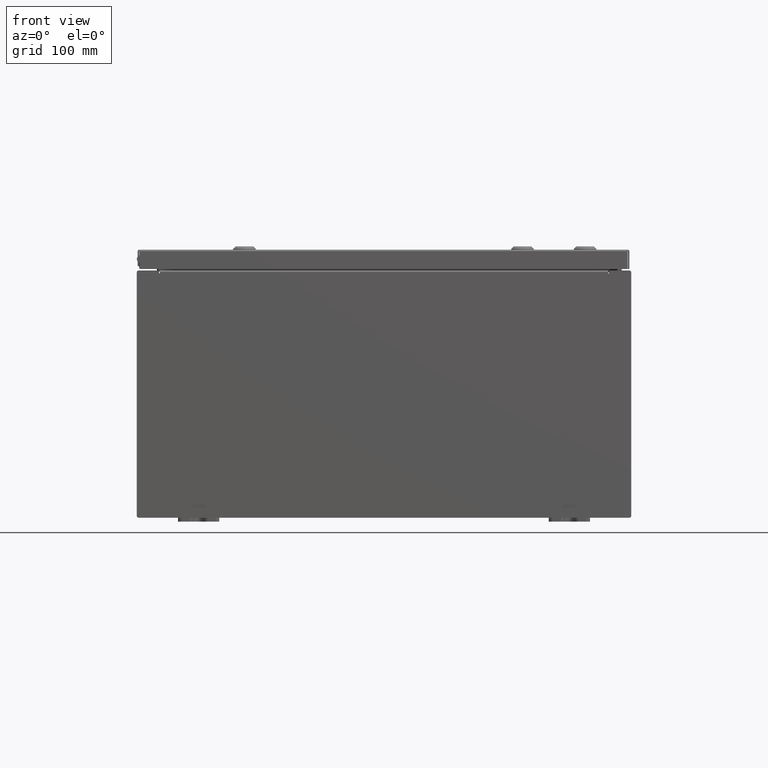
[diagram: clean part render]
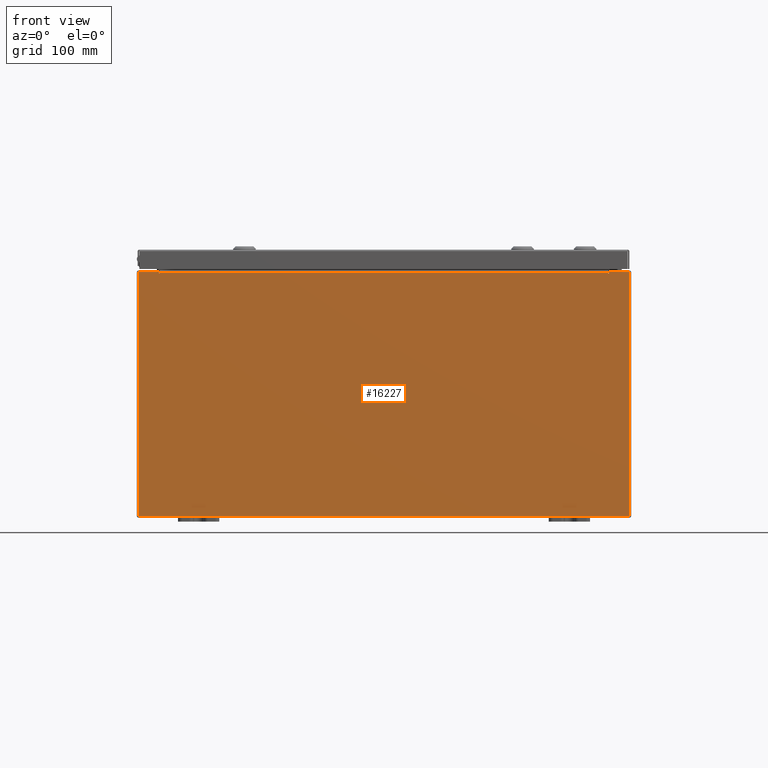
[diagram: same view with one face highlighted and labeled with its STEP entity id]
A machine part, front view. The second image highlights one B-rep face of the part: STEP entity #16227.
In plain terms, the highlighted planar face has unit normal (-0, 1, -0).
Its self-contained STEP definition (entity closure, byte-faithful):
#368 = ORIENTED_EDGE ( 'NONE', *, *, #1077, .T. ) ;
#1077 = EDGE_CURVE ( 'NONE', #51883, #45047, #43403, .T. ) ;
#2748 = VERTEX_POINT ( 'NONE', #34332 ) ;
#4678 = CIRCLE ( 'NONE', #19954, 0.01867499999999949400 ) ;
#4879 = DIRECTION ( 'NONE',  ( 0.0000000000000000000, 0.0000000000000000000, -1.000000000000000000 ) ) ;
#6088 = CARTESIAN_POINT ( 'NONE',  ( 10.92455000000000000, 0.0000000000000000000, 0.0000000000000000000 ) ) ;
#7534 = CARTESIAN_POINT ( 'NONE',  ( -11.92530000000000000, 0.0000000000000000000, 5.925300000000000000 ) ) ;
#7578 = CARTESIAN_POINT ( 'NONE',  ( -11.92530000000000000, 0.0000000000000000000, 5.925300000000000000 ) ) ;
#8031 = EDGE_CURVE ( 'NONE', #45047, #44910, #38470, .T. ) ;
#9326 = EDGE_CURVE ( 'NONE', #11562, #13471, #4678, .T. ) ;
#9350 = FACE_OUTER_BOUND ( 'NONE', #17246, .T. ) ;
#9672 = EDGE_CURVE ( 'NONE', #2748, #29135, #62175, .T. ) ;
#10993 = DIRECTION ( 'NONE',  ( 0.0000000000000000000, 0.0000000000000000000, -1.000000000000000000 ) ) ;
#11240 = DIRECTION ( 'NONE',  ( 1.000000000000000000, 0.0000000000000000000, 4.581600452255731000E-017 ) ) ;
#11562 = VERTEX_POINT ( 'NONE', #17351 ) ;
#12150 = DIRECTION ( 'NONE',  ( -0.0000000000000000000, 1.000000000000000000, -0.0000000000000000000 ) ) ;
#13124 = ORIENTED_EDGE ( 'NONE', *, *, #32636, .T. ) ;
#13471 = VERTEX_POINT ( 'NONE', #60496 ) ;
#13791 = DIRECTION ( 'NONE',  ( 0.0000000000000000000, 0.0000000000000000000, 1.000000000000000000 ) ) ;
#14008 = CARTESIAN_POINT ( 'NONE',  ( 10.92455000000000000, 0.0000000000000000000, 5.925300000000001800 ) ) ;
#14505 = CARTESIAN_POINT ( 'NONE',  ( -11.92530000000000000, 0.0000000000000000000, -5.925299999999999100 ) ) ;
#16227 = ADVANCED_FACE ( 'NONE', ( #9350 ), #55082, .F. ) ;
#17246 = EDGE_LOOP ( 'NONE', ( #52446, #63145, #41441, #13124, #52461, #54699, #20098, #26224, #57097, #46623, #368, #59735 ) ) ;
#17351 = CARTESIAN_POINT ( 'NONE',  ( -10.88720000000000000, -0.0000000000000000000, 5.874950000000001000 ) ) ;
#18836 = CARTESIAN_POINT ( 'NONE',  ( -10.88720000000000200, -1.707404996040164500E-016, 5.912300000000001000 ) ) ;
#19494 = EDGE_CURVE ( 'NONE', #29135, #24388, #35966, .T. ) ;
#19532 = CARTESIAN_POINT ( 'NONE',  ( 10.88720000000000200, 0.0000000000000000000, 5.874950000000001000 ) ) ;
#19954 = AXIS2_PLACEMENT_3D ( 'NONE', #41539, #12150, #46480 ) ;
#20098 = ORIENTED_EDGE ( 'NONE', *, *, #60185, .F. ) ;
#20327 = VECTOR ( 'NONE', #53533, 39.37007874015748100 ) ;
#20772 = CARTESIAN_POINT ( 'NONE',  ( 0.0000000000000000000, 0.0000000000000000000, 0.0000000000000000000 ) ) ;
#23440 = CARTESIAN_POINT ( 'NONE',  ( 10.88720000000000200, 0.0000000000000000000, 0.0000000000000000000 ) ) ;
#23774 = DIRECTION ( 'NONE',  ( 1.000000000000000000, 0.0000000000000000000, 0.0000000000000000000 ) ) ;
#24008 = EDGE_CURVE ( 'NONE', #54412, #51883, #46454, .T. ) ;
#24388 = VERTEX_POINT ( 'NONE', #41080 ) ;
#24462 = VECTOR ( 'NONE', #13791, 39.37007874015748100 ) ;
#24480 = VECTOR ( 'NONE', #31939, 39.37007874015748100 ) ;
#25178 = CARTESIAN_POINT ( 'NONE',  ( 10.90587500000000200, 0.0000000000000000000, 5.874950000000001000 ) ) ;
#25371 = CARTESIAN_POINT ( 'NONE',  ( -11.92530000000000000, 0.0000000000000000000, 5.925300000000000000 ) ) ;
#25569 = CARTESIAN_POINT ( 'NONE',  ( 11.92530000000000000, 0.0000000000000000000, 5.925300000000001800 ) ) ;
#25721 = EDGE_CURVE ( 'NONE', #13471, #44910, #35141, .T. ) ;
#26224 = ORIENTED_EDGE ( 'NONE', *, *, #38797, .T. ) ;
#26739 = DIRECTION ( 'NONE',  ( 0.0000000000000000000, 0.0000000000000000000, 1.000000000000000000 ) ) ;
#27105 = AXIS2_PLACEMENT_3D ( 'NONE', #20772, #60036, #30661 ) ;
#27283 = DIRECTION ( 'NONE',  ( -0.0000000000000000000, -0.0000000000000000000, 1.000000000000000000 ) ) ;
#29135 = VERTEX_POINT ( 'NONE', #19532 ) ;
#30122 = DIRECTION ( 'NONE',  ( 0.0000000000000000000, 0.0000000000000000000, -1.000000000000000000 ) ) ;
#30661 = DIRECTION ( 'NONE',  ( 0.0000000000000000000, -0.0000000000000000000, -1.000000000000000000 ) ) ;
#31631 = DIRECTION ( 'NONE',  ( 0.0000000000000000000, 0.0000000000000000000, -1.000000000000000000 ) ) ;
#31939 = DIRECTION ( 'NONE',  ( 1.000000000000000000, 0.0000000000000000000, 4.581600452255731000E-017 ) ) ;
#32636 = EDGE_CURVE ( 'NONE', #35146, #24388, #37123, .T. ) ;
#34332 = CARTESIAN_POINT ( 'NONE',  ( 10.92455000000000000, 0.0000000000000000000, 5.874950000000001000 ) ) ;
#34963 = VECTOR ( 'NONE', #31631, 39.37007874015748100 ) ;
#35141 = LINE ( 'NONE', #56089, #61268 ) ;
#35146 = VERTEX_POINT ( 'NONE', #60548 ) ;
#35695 = CARTESIAN_POINT ( 'NONE',  ( -11.92530000000000000, 0.0000000000000000000, 5.925300000000000000 ) ) ;
#35952 = AXIS2_PLACEMENT_3D ( 'NONE', #25178, #59499, #30122 ) ;
#35966 = LINE ( 'NONE', #23440, #24462 ) ;
#36925 = VECTOR ( 'NONE', #11240, 39.37007874015748100 ) ;
#37123 = LINE ( 'NONE', #18836, #61708 ) ;
#37144 = EDGE_CURVE ( 'NONE', #44902, #54412, #60679, .T. ) ;
#37242 = LINE ( 'NONE', #6088, #51859 ) ;
#38470 = LINE ( 'NONE', #35695, #36925 ) ;
#38797 = EDGE_CURVE ( 'NONE', #52666, #44902, #43087, .T. ) ;
#41080 = CARTESIAN_POINT ( 'NONE',  ( 10.88720000000000200, 0.0000000000000000000, 5.912300000000001000 ) ) ;
#41441 = ORIENTED_EDGE ( 'NONE', *, *, #59833, .F. ) ;
#41539 = CARTESIAN_POINT ( 'NONE',  ( -10.90587500000000000, 0.0000000000000000000, 5.874950000000001000 ) ) ;
#43087 = LINE ( 'NONE', #7534, #24480 ) ;
#43403 = LINE ( 'NONE', #25371, #56397 ) ;
#44902 = VERTEX_POINT ( 'NONE', #25569 ) ;
#44910 = VERTEX_POINT ( 'NONE', #55154 ) ;
#45047 = VERTEX_POINT ( 'NONE', #7578 ) ;
#46454 = LINE ( 'NONE', #14505, #20327 ) ;
#46480 = DIRECTION ( 'NONE',  ( 0.0000000000000000000, 0.0000000000000000000, -1.000000000000000000 ) ) ;
#46623 = ORIENTED_EDGE ( 'NONE', *, *, #24008, .T. ) ;
#51859 = VECTOR ( 'NONE', #10993, 39.37007874015748100 ) ;
#51883 = VERTEX_POINT ( 'NONE', #60744 ) ;
#52446 = ORIENTED_EDGE ( 'NONE', *, *, #25721, .F. ) ;
#52461 = ORIENTED_EDGE ( 'NONE', *, *, #19494, .F. ) ;
#52666 = VERTEX_POINT ( 'NONE', #14008 ) ;
#53533 = DIRECTION ( 'NONE',  ( -1.000000000000000000, -0.0000000000000000000, -0.0000000000000000000 ) ) ;
#54412 = VERTEX_POINT ( 'NONE', #59886 ) ;
#54699 = ORIENTED_EDGE ( 'NONE', *, *, #9672, .F. ) ;
#55082 = PLANE ( 'NONE',  #27105 ) ;
#55154 = CARTESIAN_POINT ( 'NONE',  ( -10.92454999999999800, 0.0000000000000000000, 5.925300000000000000 ) ) ;
#56089 = CARTESIAN_POINT ( 'NONE',  ( -10.92454999999999800, -0.0000000000000000000, 0.0000000000000000000 ) ) ;
#56397 = VECTOR ( 'NONE', #27283, 39.37007874015748100 ) ;
#57097 = ORIENTED_EDGE ( 'NONE', *, *, #37144, .T. ) ;
#59107 = VECTOR ( 'NONE', #4879, 39.37007874015748100 ) ;
#59499 = DIRECTION ( 'NONE',  ( -0.0000000000000000000, 1.000000000000000000, -0.0000000000000000000 ) ) ;
#59540 = LINE ( 'NONE', #61026, #34963 ) ;
#59735 = ORIENTED_EDGE ( 'NONE', *, *, #8031, .T. ) ;
#59833 = EDGE_CURVE ( 'NONE', #35146, #11562, #59540, .T. ) ;
#59886 = CARTESIAN_POINT ( 'NONE',  ( 11.92530000000000000, 0.0000000000000000000, -5.925299999999999100 ) ) ;
#60036 = DIRECTION ( 'NONE',  ( 0.0000000000000000000, -1.000000000000000000, 0.0000000000000000000 ) ) ;
#60185 = EDGE_CURVE ( 'NONE', #52666, #2748, #37242, .T. ) ;
#60496 = CARTESIAN_POINT ( 'NONE',  ( -10.92454999999999800, 0.0000000000000000000, 5.874950000000001000 ) ) ;
#60548 = CARTESIAN_POINT ( 'NONE',  ( -10.88720000000000000, -1.707404996040164500E-016, 5.912300000000001000 ) ) ;
#60679 = LINE ( 'NONE', #63611, #59107 ) ;
#60744 = CARTESIAN_POINT ( 'NONE',  ( -11.92530000000000000, 0.0000000000000000000, -5.925299999999999100 ) ) ;
#61026 = CARTESIAN_POINT ( 'NONE',  ( -10.88720000000000000, -0.0000000000000000000, 0.0000000000000000000 ) ) ;
#61268 = VECTOR ( 'NONE', #26739, 39.37007874015748100 ) ;
#61708 = VECTOR ( 'NONE', #23774, 39.37007874015748100 ) ;
#62175 = CIRCLE ( 'NONE', #35952, 0.01867499999999949400 ) ;
#63145 = ORIENTED_EDGE ( 'NONE', *, *, #9326, .F. ) ;
#63611 = CARTESIAN_POINT ( 'NONE',  ( 11.92530000000000000, 0.0000000000000000000, 5.925300000000001800 ) ) ;